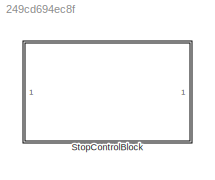
MODEL slx_249cd694ec8f
KIND library
CONFIG AbsTol = auto
CONFIG EnableMultiTasking = off
CONFIG FixedStep = auto
CONFIG MaxStep = auto
CONFIG MinStep = auto
CONFIG RelTol = 1e-3
CONFIG SampleTimeConstraint = Unconstrained
CONFIG SolverName = VariableStepAuto
CONFIG StartTime = 0.0
CONFIG StopTime = 10.0
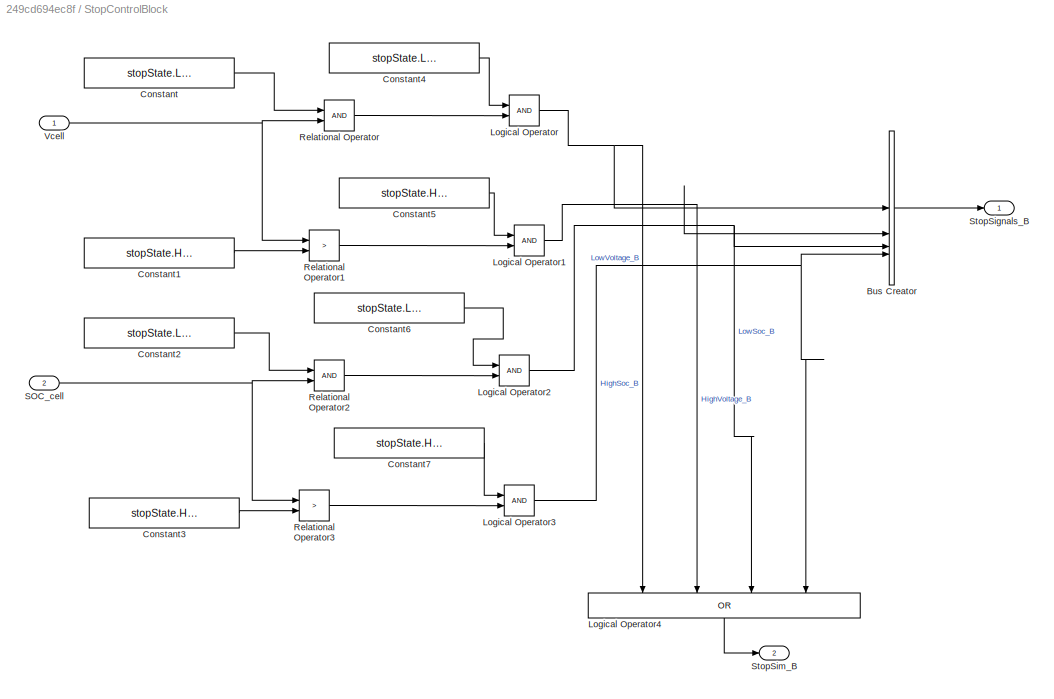
BLOCK [SubSystem] StopControlBlock
BLOCK [BusCreator] StopControlBlock/Bus Creator
  DisplayOption = bar
  InheritFromInputs = on
  Inputs = 4
BLOCK [Constant] StopControlBlock/Constant
  Value = stopState.LowVoltage_U
BLOCK [Constant] StopControlBlock/Constant1
  Value = stopState.HighVoltage_U
BLOCK [Constant] StopControlBlock/Constant2
  Value = stopState.LowSoc_Pc
BLOCK [Constant] StopControlBlock/Constant3
  Value = stopState.HighSoc_Pc
BLOCK [Constant] StopControlBlock/Constant4
  Value = stopState.LowVoltage_B
BLOCK [Constant] StopControlBlock/Constant5
  Value = stopState.HighVoltage_B
BLOCK [Constant] StopControlBlock/Constant6
  Value = stopState.LowSoc_B
BLOCK [Constant] StopControlBlock/Constant7
  Value = stopState.HighSoc_B
BLOCK [Logic] StopControlBlock/Logical Operator
  AllPortsSameDT = off
  OutDataTypeStr = boolean
BLOCK [Logic] StopControlBlock/Logical Operator1
  AllPortsSameDT = off
  OutDataTypeStr = boolean
BLOCK [Logic] StopControlBlock/Logical Operator2
  AllPortsSameDT = off
  OutDataTypeStr = boolean
BLOCK [Logic] StopControlBlock/Logical Operator3
  AllPortsSameDT = off
  OutDataTypeStr = boolean
BLOCK [Logic] StopControlBlock/Logical Operator4
  AllPortsSameDT = off
  Inputs = 4
  NameLocation = left
  Operator = OR
  OutDataTypeStr = boolean
BLOCK [RelationalOperator] StopControlBlock/Relational Operator
  InputSameDT = off
  OutDataTypeStr = boolean
  RndMeth = Simplest
BLOCK [RelationalOperator] StopControlBlock/Relational Operator1
  InputSameDT = off
  Operator = >
  OutDataTypeStr = boolean
  RndMeth = Simplest
BLOCK [RelationalOperator] StopControlBlock/Relational Operator2
  InputSameDT = off
  OutDataTypeStr = boolean
  RndMeth = Simplest
BLOCK [RelationalOperator] StopControlBlock/Relational Operator3
  InputSameDT = off
  Operator = >
  OutDataTypeStr = boolean
  RndMeth = Simplest
BLOCK [Inport] StopControlBlock/SOC_cell
  Port = 2
BLOCK [Outport] StopControlBlock/StopSignals_B
BLOCK [Outport] StopControlBlock/StopSim_B
  Port = 2
BLOCK [Inport] StopControlBlock/Vcell
LINE StopControlBlock/Bus Creator:1 -> StopControlBlock/StopSignals_B:1
LINE StopControlBlock/Constant1:1 -> StopControlBlock/Relational Operator1:2
LINE StopControlBlock/Constant2:1 -> StopControlBlock/Relational Operator2:1
LINE StopControlBlock/Constant3:1 -> StopControlBlock/Relational Operator3:2
LINE StopControlBlock/Constant4:1 -> StopControlBlock/Logical Operator:1
LINE StopControlBlock/Constant5:1 -> StopControlBlock/Logical Operator1:1
LINE StopControlBlock/Constant6:1 -> StopControlBlock/Logical Operator2:1
LINE StopControlBlock/Constant7:1 -> StopControlBlock/Logical Operator3:1
LINE StopControlBlock/Constant:1 -> StopControlBlock/Relational Operator:1
NET StopControlBlock/Logical Operator1:1 -> StopControlBlock/Bus Creator:2, StopControlBlock/Logical Operator4:2
NET StopControlBlock/Logical Operator2:1 -> StopControlBlock/Bus Creator:3, StopControlBlock/Logical Operator4:3
NET StopControlBlock/Logical Operator3:1 -> StopControlBlock/Bus Creator:4, StopControlBlock/Logical Operator4:4
LINE StopControlBlock/Logical Operator4:1 -> StopControlBlock/StopSim_B:1
NET StopControlBlock/Logical Operator:1 -> StopControlBlock/Bus Creator:1, StopControlBlock/Logical Operator4:1
LINE StopControlBlock/Relational Operator1:1 -> StopControlBlock/Logical Operator1:2
LINE StopControlBlock/Relational Operator2:1 -> StopControlBlock/Logical Operator2:2
LINE StopControlBlock/Relational Operator3:1 -> StopControlBlock/Logical Operator3:2
LINE StopControlBlock/Relational Operator:1 -> StopControlBlock/Logical Operator:2
NET StopControlBlock/SOC_cell:1 -> StopControlBlock/Relational Operator2:2, StopControlBlock/Relational Operator3:1
NET StopControlBlock/Vcell:1 -> StopControlBlock/Relational Operator1:1, StopControlBlock/Relational Operator:2
note: NET lines group one-source signal fan-out (src -> all destinations, sorted); 1:1 wires keep LINE
